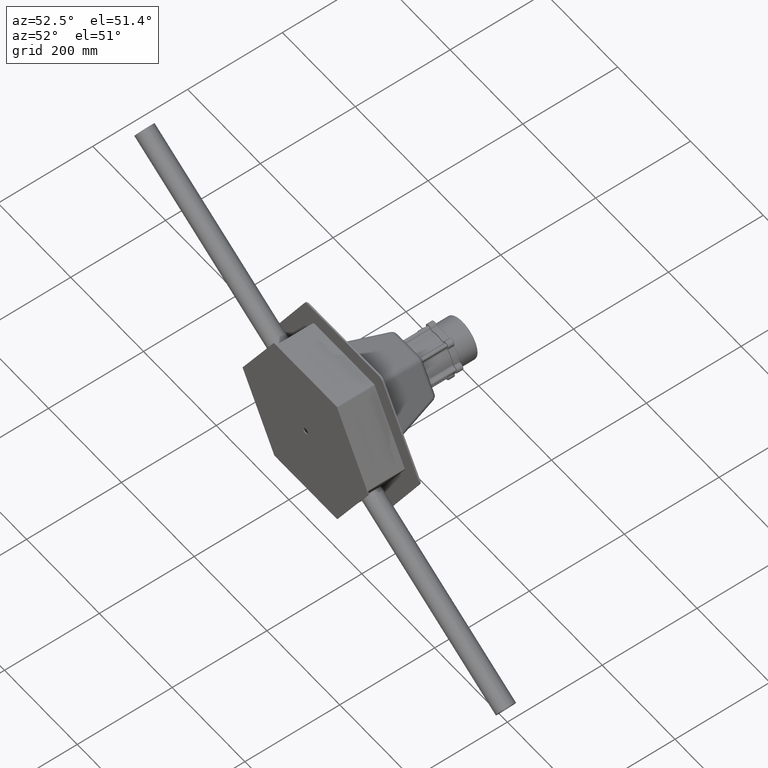
[diagram: clean part render]
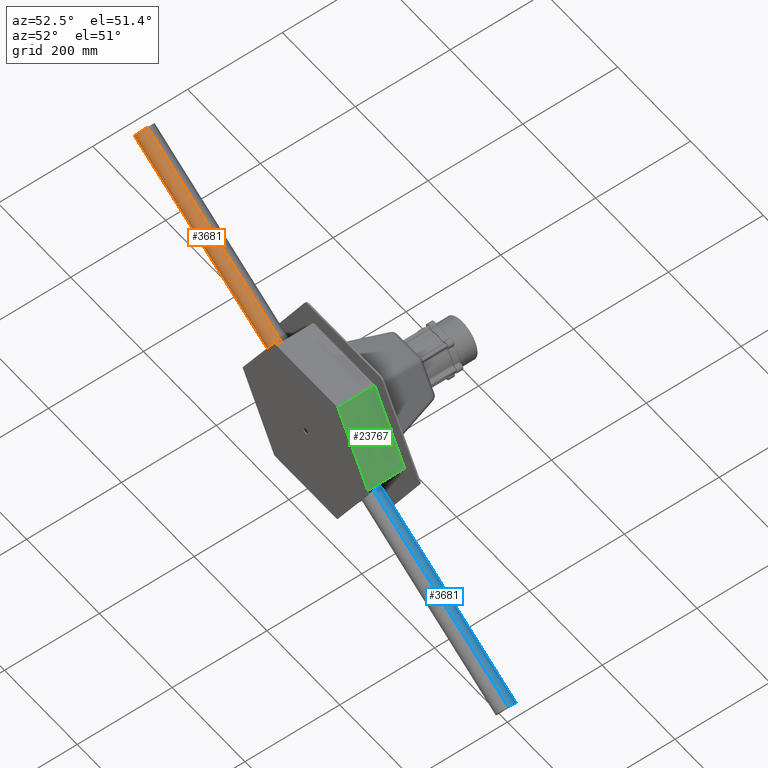
[diagram: same view with three faces highlighted in distinct colors, each labeled with its STEP entity id]
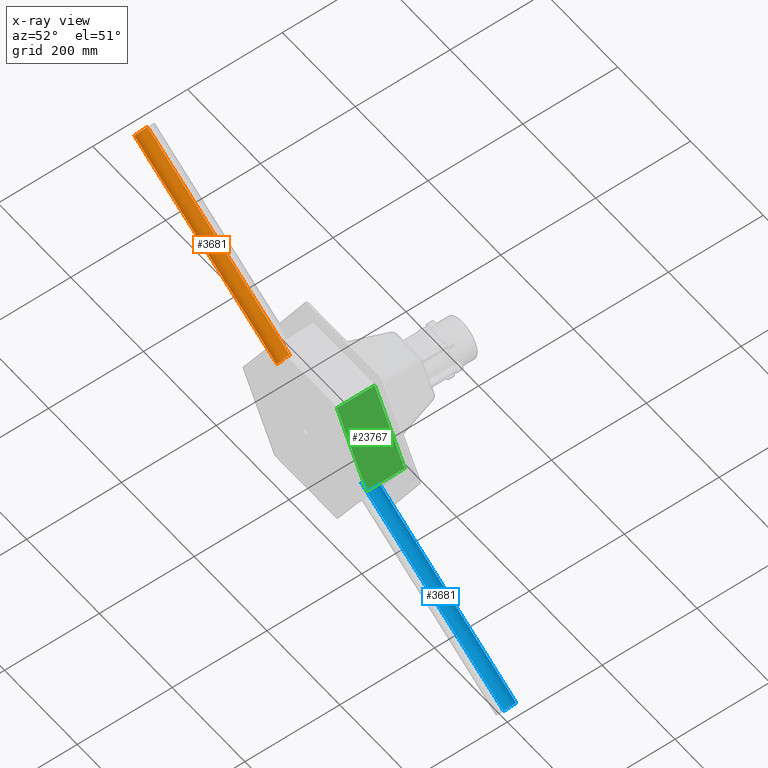
[diagram: x-ray of the same camera — body ghosted, the three highlighted faces saturated]
A machine part, auxiliary view with three faces highlighted in distinct colors.
The next image is the same camera in x-ray (body ghosted, the three faces saturated) — at least one of them is partly hidden behind the body in this view.
Their STEP definitions:

[orange] entity #3681 — the highlighted cylindrical surface (edge-blend (fillet) strip) has radius 20 mm, axis along (0.8688, -0, -0.4951).
#1101 = VECTOR ( 'NONE', #25241, 1000.000000000000000 ) ;
#1877 = VECTOR ( 'NONE', #29194, 1000.000000000000000 ) ;
#2275 = AXIS2_PLACEMENT_3D ( 'NONE', #2693, #20794, #5311 ) ;
#2319 = ORIENTED_EDGE ( 'NONE', *, *, #26385, .T. ) ;
#2693 = CARTESIAN_POINT ( 'NONE',  ( 0.0000000000000000000, 0.0000000000000000000, 450.0000000000000000 ) ) ;
#3200 = CARTESIAN_POINT ( 'NONE',  ( 0.0000000000000000000, 0.0000000000000000000, 0.0000000000000000000 ) ) ;
#3681 = ADVANCED_FACE ( 'NONE', ( #20426 ), #6676, .T. ) ;
#4011 = CARTESIAN_POINT ( 'NONE',  ( 20.00000000000000000, 2.449293598294706513E-15, 0.0000000000000000000 ) ) ;
#4520 = DIRECTION ( 'NONE',  ( -0.0000000000000000000, -0.0000000000000000000, -1.000000000000000000 ) ) ;
#5311 = DIRECTION ( 'NONE',  ( 1.000000000000000000, 0.0000000000000000000, 0.0000000000000000000 ) ) ;
#5807 = DIRECTION ( 'NONE',  ( 1.000000000000000000, 0.0000000000000000000, 0.0000000000000000000 ) ) ;
#6676 = CYLINDRICAL_SURFACE ( 'NONE', #17675, 20.00000000000000000 ) ;
#9387 = ORIENTED_EDGE ( 'NONE', *, *, #26082, .F. ) ;
#9710 = CARTESIAN_POINT ( 'NONE',  ( 0.0000000000000000000, 0.0000000000000000000, 450.0000000000000000 ) ) ;
#14749 = AXIS2_PLACEMENT_3D ( 'NONE', #3200, #21309, #5807 ) ;
#15352 = EDGE_CURVE ( 'NONE', #32360, #20187, #20680, .T. ) ;
#15568 = CIRCLE ( 'NONE', #14749, 20.00000000000000000 ) ;
#16249 = CARTESIAN_POINT ( 'NONE',  ( -20.00000000000000000, 0.0000000000000000000, 450.0000000000000000 ) ) ;
#17675 = AXIS2_PLACEMENT_3D ( 'NONE', #9710, #4520, #27518 ) ;
#20187 = VERTEX_POINT ( 'NONE', #30187 ) ;
#20426 = FACE_OUTER_BOUND ( 'NONE', #29658, .T. ) ;
#20680 = CIRCLE ( 'NONE', #2275, 20.00000000000000000 ) ;
#20794 = DIRECTION ( 'NONE',  ( 0.0000000000000000000, 0.0000000000000000000, 1.000000000000000000 ) ) ;
#21309 = DIRECTION ( 'NONE',  ( 0.0000000000000000000, 0.0000000000000000000, 1.000000000000000000 ) ) ;
#22544 = LINE ( 'NONE', #16249, #1877 ) ;
#22551 = CARTESIAN_POINT ( 'NONE',  ( -20.00000000000000000, 0.0000000000000000000, 450.0000000000000000 ) ) ;
#25241 = DIRECTION ( 'NONE',  ( -0.0000000000000000000, -0.0000000000000000000, -1.000000000000000000 ) ) ;
#25301 = CARTESIAN_POINT ( 'NONE',  ( -20.00000000000000000, 0.0000000000000000000, 0.0000000000000000000 ) ) ;
#26082 = EDGE_CURVE ( 'NONE', #20187, #29427, #28671, .T. ) ;
#26385 = EDGE_CURVE ( 'NONE', #32360, #31547, #22544, .T. ) ;
#27241 = EDGE_CURVE ( 'NONE', #31547, #29427, #15568, .T. ) ;
#27442 = ORIENTED_EDGE ( 'NONE', *, *, #15352, .F. ) ;
#27518 = DIRECTION ( 'NONE',  ( -1.000000000000000000, 0.0000000000000000000, 0.0000000000000000000 ) ) ;
#27856 = CARTESIAN_POINT ( 'NONE',  ( 20.00000000000000000, 2.449293598294706513E-15, 450.0000000000000000 ) ) ;
#28671 = LINE ( 'NONE', #27856, #1101 ) ;
#29194 = DIRECTION ( 'NONE',  ( -0.0000000000000000000, -0.0000000000000000000, -1.000000000000000000 ) ) ;
#29427 = VERTEX_POINT ( 'NONE', #4011 ) ;
#29658 = EDGE_LOOP ( 'NONE', ( #9387, #27442, #2319, #33008 ) ) ;
#30187 = CARTESIAN_POINT ( 'NONE',  ( 20.00000000000000000, 2.449293598294706513E-15, 450.0000000000000000 ) ) ;
#31547 = VERTEX_POINT ( 'NONE', #25301 ) ;
#32360 = VERTEX_POINT ( 'NONE', #22551 ) ;
#33008 = ORIENTED_EDGE ( 'NONE', *, *, #27241, .T. ) ;

[blue] entity #3681 — the highlighted cylindrical surface (edge-blend (fillet) strip) has radius 20 mm, axis along (-0.8688, 0, 0.4951).
#1101 = VECTOR ( 'NONE', #25241, 1000.000000000000000 ) ;
#1877 = VECTOR ( 'NONE', #29194, 1000.000000000000000 ) ;
#2275 = AXIS2_PLACEMENT_3D ( 'NONE', #2693, #20794, #5311 ) ;
#2319 = ORIENTED_EDGE ( 'NONE', *, *, #26385, .T. ) ;
#2693 = CARTESIAN_POINT ( 'NONE',  ( 0.0000000000000000000, 0.0000000000000000000, 450.0000000000000000 ) ) ;
#3200 = CARTESIAN_POINT ( 'NONE',  ( 0.0000000000000000000, 0.0000000000000000000, 0.0000000000000000000 ) ) ;
#3681 = ADVANCED_FACE ( 'NONE', ( #20426 ), #6676, .T. ) ;
#4011 = CARTESIAN_POINT ( 'NONE',  ( 20.00000000000000000, 2.449293598294706513E-15, 0.0000000000000000000 ) ) ;
#4520 = DIRECTION ( 'NONE',  ( -0.0000000000000000000, -0.0000000000000000000, -1.000000000000000000 ) ) ;
#5311 = DIRECTION ( 'NONE',  ( 1.000000000000000000, 0.0000000000000000000, 0.0000000000000000000 ) ) ;
#5807 = DIRECTION ( 'NONE',  ( 1.000000000000000000, 0.0000000000000000000, 0.0000000000000000000 ) ) ;
#6676 = CYLINDRICAL_SURFACE ( 'NONE', #17675, 20.00000000000000000 ) ;
#9387 = ORIENTED_EDGE ( 'NONE', *, *, #26082, .F. ) ;
#9710 = CARTESIAN_POINT ( 'NONE',  ( 0.0000000000000000000, 0.0000000000000000000, 450.0000000000000000 ) ) ;
#14749 = AXIS2_PLACEMENT_3D ( 'NONE', #3200, #21309, #5807 ) ;
#15352 = EDGE_CURVE ( 'NONE', #32360, #20187, #20680, .T. ) ;
#15568 = CIRCLE ( 'NONE', #14749, 20.00000000000000000 ) ;
#16249 = CARTESIAN_POINT ( 'NONE',  ( -20.00000000000000000, 0.0000000000000000000, 450.0000000000000000 ) ) ;
#17675 = AXIS2_PLACEMENT_3D ( 'NONE', #9710, #4520, #27518 ) ;
#20187 = VERTEX_POINT ( 'NONE', #30187 ) ;
#20426 = FACE_OUTER_BOUND ( 'NONE', #29658, .T. ) ;
#20680 = CIRCLE ( 'NONE', #2275, 20.00000000000000000 ) ;
#20794 = DIRECTION ( 'NONE',  ( 0.0000000000000000000, 0.0000000000000000000, 1.000000000000000000 ) ) ;
#21309 = DIRECTION ( 'NONE',  ( 0.0000000000000000000, 0.0000000000000000000, 1.000000000000000000 ) ) ;
#22544 = LINE ( 'NONE', #16249, #1877 ) ;
#22551 = CARTESIAN_POINT ( 'NONE',  ( -20.00000000000000000, 0.0000000000000000000, 450.0000000000000000 ) ) ;
#25241 = DIRECTION ( 'NONE',  ( -0.0000000000000000000, -0.0000000000000000000, -1.000000000000000000 ) ) ;
#25301 = CARTESIAN_POINT ( 'NONE',  ( -20.00000000000000000, 0.0000000000000000000, 0.0000000000000000000 ) ) ;
#26082 = EDGE_CURVE ( 'NONE', #20187, #29427, #28671, .T. ) ;
#26385 = EDGE_CURVE ( 'NONE', #32360, #31547, #22544, .T. ) ;
#27241 = EDGE_CURVE ( 'NONE', #31547, #29427, #15568, .T. ) ;
#27442 = ORIENTED_EDGE ( 'NONE', *, *, #15352, .F. ) ;
#27518 = DIRECTION ( 'NONE',  ( -1.000000000000000000, 0.0000000000000000000, 0.0000000000000000000 ) ) ;
#27856 = CARTESIAN_POINT ( 'NONE',  ( 20.00000000000000000, 2.449293598294706513E-15, 450.0000000000000000 ) ) ;
#28671 = LINE ( 'NONE', #27856, #1101 ) ;
#29194 = DIRECTION ( 'NONE',  ( -0.0000000000000000000, -0.0000000000000000000, -1.000000000000000000 ) ) ;
#29427 = VERTEX_POINT ( 'NONE', #4011 ) ;
#29658 = EDGE_LOOP ( 'NONE', ( #9387, #27442, #2319, #33008 ) ) ;
#30187 = CARTESIAN_POINT ( 'NONE',  ( 20.00000000000000000, 2.449293598294706513E-15, 450.0000000000000000 ) ) ;
#31547 = VERTEX_POINT ( 'NONE', #25301 ) ;
#32360 = VERTEX_POINT ( 'NONE', #22551 ) ;
#33008 = ORIENTED_EDGE ( 'NONE', *, *, #27241, .T. ) ;

[green] entity #23767 — the highlighted planar face has unit normal (-0.8632, -0, -0.5049).
#276 = VECTOR ( 'NONE', #30727, 1000.000000000000114 ) ;
#398 = DIRECTION ( 'NONE',  ( 0.0000000000000000000, -1.000000000000000000, 0.0000000000000000000 ) ) ;
#939 = DIRECTION ( 'NONE',  ( 0.4999999999999979461, 0.0000000000000000000, -0.8660254037844397068 ) ) ;
#1616 = VERTEX_POINT ( 'NONE', #3342 ) ;
#2069 = FACE_OUTER_BOUND ( 'NONE', #25769, .T. ) ;
#2399 = EDGE_CURVE ( 'NONE', #24663, #16302, #29812, .T. ) ;
#3342 = CARTESIAN_POINT ( 'NONE',  ( 129.9754169064670464, 39.99999999999997868, 140.1024197954095030 ) ) ;
#3438 = PLANE ( 'NONE',  #25810 ) ;
#4510 = EDGE_CURVE ( 'NONE', #1616, #20068, #18332, .T. ) ;
#7164 = LINE ( 'NONE', #22895, #276 ) ;
#8213 = CARTESIAN_POINT ( 'NONE',  ( 211.5169739891061340, 0.0000000000000000000, -1.131699999999985495 ) ) ;
#11256 = CARTESIAN_POINT ( 'NONE',  ( 105.3115727541661784, 0.0000000000000000000, 182.8214509771553935 ) ) ;
#12126 = EDGE_CURVE ( 'NONE', #24663, #1616, #7164, .T. ) ;
#12282 = VECTOR ( 'NONE', #25084, 1000.000000000000000 ) ;
#14032 = ORIENTED_EDGE ( 'NONE', *, *, #22817, .F. ) ;
#14769 = CARTESIAN_POINT ( 'NONE',  ( 129.9754169064670464, 0.0000000000000000000, 140.1024197954095030 ) ) ;
#15113 = LINE ( 'NONE', #32511, #28913 ) ;
#15937 = ORIENTED_EDGE ( 'NONE', *, *, #2399, .T. ) ;
#16302 = VERTEX_POINT ( 'NONE', #25270 ) ;
#16436 = DIRECTION ( 'NONE',  ( 0.8660254037844398178, 0.0000000000000000000, 0.4999999999999980016 ) ) ;
#18332 = LINE ( 'NONE', #14769, #12282 ) ;
#19182 = CARTESIAN_POINT ( 'NONE',  ( 129.9754169064670464, -40.00000000000000711, 140.1024197954095030 ) ) ;
#19576 = DIRECTION ( 'NONE',  ( 0.4999999999999979461, 1.261617073437677999E-16, -0.8660254037844397068 ) ) ;
#20068 = VERTEX_POINT ( 'NONE', #19182 ) ;
#21638 = ORIENTED_EDGE ( 'NONE', *, *, #4510, .F. ) ;
#22817 = EDGE_CURVE ( 'NONE', #20068, #16302, #15113, .T. ) ;
#22895 = CARTESIAN_POINT ( 'NONE',  ( 294.7627788023237940, 40.00000000000005684, -145.3176634534556229 ) ) ;
#23699 = VECTOR ( 'NONE', #398, 1000.000000000000000 ) ;
#23767 = ADVANCED_FACE ( 'NONE', ( #2069 ), #3438, .F. ) ;
#24663 = VERTEX_POINT ( 'NONE', #31139 ) ;
#25084 = DIRECTION ( 'NONE',  ( 0.0000000000000000000, -1.000000000000000000, 0.0000000000000000000 ) ) ;
#25270 = CARTESIAN_POINT ( 'NONE',  ( 211.5169739891061340, -39.99999999999996447, -1.131699999999985495 ) ) ;
#25769 = EDGE_LOOP ( 'NONE', ( #29834, #15937, #14032, #21638 ) ) ;
#25810 = AXIS2_PLACEMENT_3D ( 'NONE', #11256, #16436, #939 ) ;
#28913 = VECTOR ( 'NONE', #19576, 1000.000000000000114 ) ;
#29812 = LINE ( 'NONE', #8213, #23699 ) ;
#29834 = ORIENTED_EDGE ( 'NONE', *, *, #12126, .F. ) ;
#30727 = DIRECTION ( 'NONE',  ( -0.4999999999999979461, -1.261617073437677999E-16, 0.8660254037844397068 ) ) ;
#31139 = CARTESIAN_POINT ( 'NONE',  ( 211.5169739891061340, 40.00000000000000711, -1.131700000000011030 ) ) ;
#32511 = CARTESIAN_POINT ( 'NONE',  ( 294.7627788023237940, -39.99999999999994316, -145.3176634534556229 ) ) ;